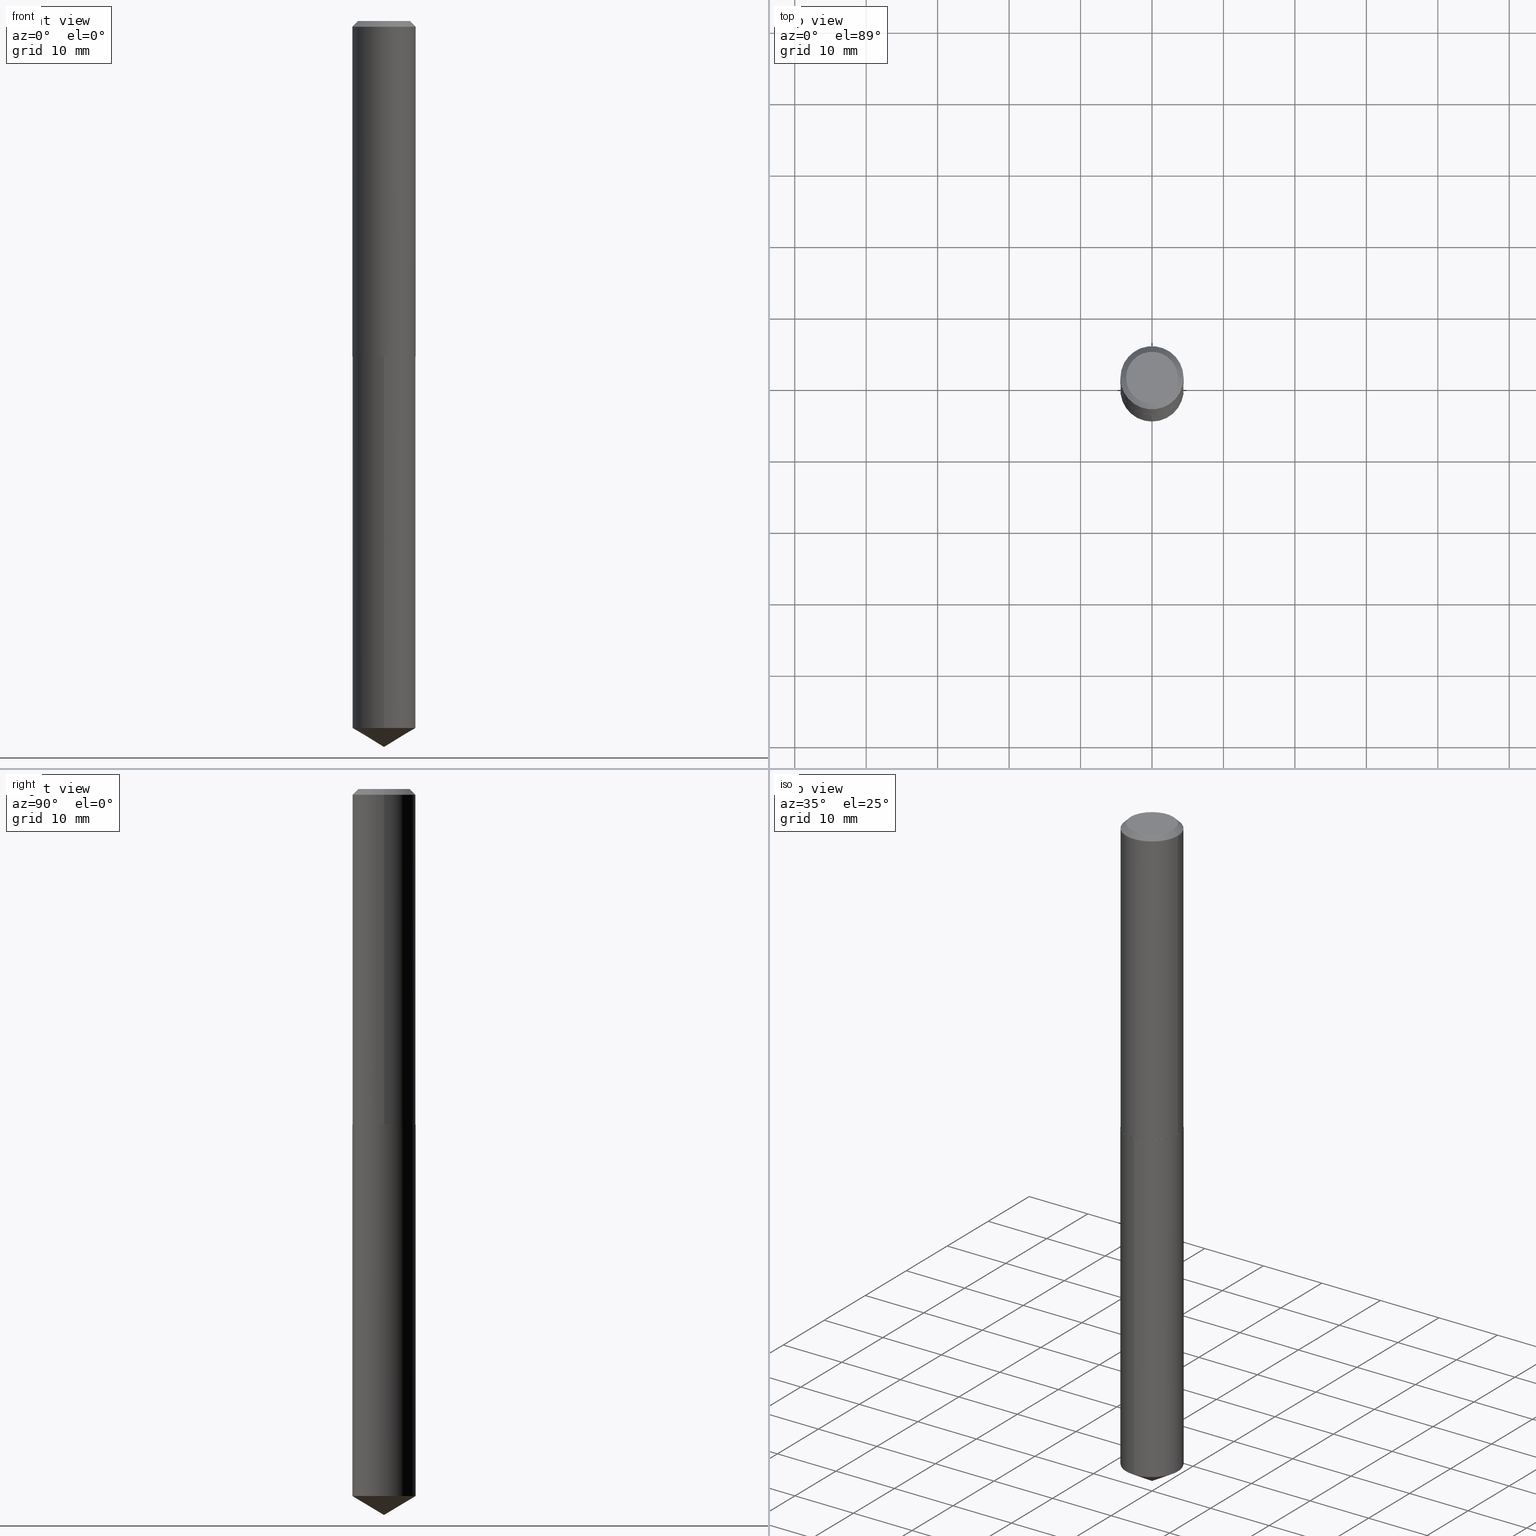
[diagram: canonical four-view strip — front | top / right | iso, engineering-drawing reading convention]
A machine part, canonical four-view strip (front | top / right | iso — engineering-drawing reading convention). The complete STEP part file that produces these views, byte-faithful:
ISO-10303-21;
HEADER;
FILE_DESCRIPTION (( 'STEP AP203' ),
    '1' );
FILE_NAME ('57196.STEP',
    '2024-04-22T23:48:17',
    ( '' ),
    ( '' ),
    'SwSTEP 2.0',
    'SolidWorks 2023',
    '' );
FILE_SCHEMA (( 'CONFIG_CONTROL_DESIGN' ));
ENDSEC;

DATA;
#1 = CALENDAR_DATE ( 2024, 22, 4 ) ;
#2 = PERSON_AND_ORGANIZATION_ROLE ( 'creator' ) ;
#3 = APPROVAL_DATE_TIME ( #212, #384 ) ;
#4 = APPROVAL_ROLE ( '' ) ;
#5 = VERTEX_POINT ( 'NONE', #163 ) ;
#6 = CLOSED_SHELL ( 'NONE', ( #122, #293, #249, #390, #70 ) ) ;
#7 = ORIENTED_EDGE ( 'NONE', *, *, #45, .F. ) ;
#8 = AXIS2_PLACEMENT_3D ( 'NONE', #374, #102, #82 ) ;
#9 = DIRECTION ( 'NONE',  ( 2.445468806185136597E-29, -3.491481338843145583E-15, -1.000000000000000000 ) ) ;
#10 = DIRECTION ( 'NONE',  ( -2.445466038438734772E-29, 3.491485302413523410E-15, 1.000000000000000000 ) ) ;
#11 = DIRECTION ( 'NONE',  ( -2.445466038438734772E-29, 3.491485302413523410E-15, 1.000000000000000000 ) ) ;
#12 = EDGE_CURVE ( 'NONE', #312, #285, #227, .T. ) ;
#13 = DIMENSIONAL_EXPONENTS ( 1.000000000000000000, 0.000000000000000000, 0.000000000000000000, 0.000000000000000000, 0.000000000000000000, 0.000000000000000000, 0.000000000000000000 ) ;
#14 = VECTOR ( 'NONE', #49, 39.37007874015748143 ) ;
#15 = LINE ( 'NONE', #86, #84 ) ;
#16 = DIRECTION ( 'NONE',  ( -2.445466038438734772E-29, 3.491485302413523410E-15, 1.000000000000000000 ) ) ;
#17 = DIRECTION ( 'NONE',  ( 0.7071067811865452413, -7.319954787623248157E-15, -0.7071067811865497932 ) ) ;
#18 = CC_DESIGN_SECURITY_CLASSIFICATION ( #346, ( #282 ) ) ;
#19 = EDGE_CURVE ( 'NONE', #312, #328, #236, .T. ) ;
#20 = DIRECTION ( 'NONE',  ( -2.445468806185136597E-29, 3.491481338843145583E-15, 1.000000000000000000 ) ) ;
#21 = ORIENTED_EDGE ( 'NONE', *, *, #324, .F. ) ;
#22 = EDGE_LOOP ( 'NONE', ( #24, #138, #91, #341 ) ) ;
#23 = CARTESIAN_POINT ( 'NONE',  ( 4.519226353830132731E-29, -6.452257514182133570E-15, -1.848000000000000087 ) ) ;
#24 = ORIENTED_EDGE ( 'NONE', *, *, #287, .T. ) ;
#25 = EDGE_LOOP ( 'NONE', ( #87, #276, #117, #243 ) ) ;
#26 = APPROVAL_DATE_TIME ( #61, #175 ) ;
#27 = DIRECTION ( 'NONE',  ( -2.445466038438734772E-29, 3.491485302413523410E-15, 1.000000000000000000 ) ) ;
#28 = ORIENTED_EDGE ( 'NONE', *, *, #268, .T. ) ;
#29 = EDGE_CURVE ( 'NONE', #83, #285, #200, .T. ) ;
#30 = COORDINATED_UNIVERSAL_TIME_OFFSET ( 5, 0, .BEHIND. ) ;
#31 = CALENDAR_DATE ( 2024, 22, 4 ) ;
#32 = AXIS2_PLACEMENT_3D ( 'NONE', #223, #38, #316 ) ;
#33 = APPROVAL_ROLE ( '' ) ;
#34 = MECHANICAL_CONTEXT ( 'NONE', #360, 'mechanical' ) ;
#35 = EDGE_LOOP ( 'NONE', ( #21, #315, #167 ) ) ;
#36 = EDGE_CURVE ( 'NONE', #359, #5, #292, .T. ) ;
#37 = ORIENTED_EDGE ( 'NONE', *, *, #124, .F. ) ;
#38 = DIRECTION ( 'NONE',  ( -2.445466038438734772E-29, 3.491485302413523410E-15, 1.000000000000000000 ) ) ;
#39 = CC_DESIGN_PERSON_AND_ORGANIZATION_ASSIGNMENT ( #114, #174, ( #346 ) ) ;
#40 = CONICAL_SURFACE ( 'NONE', #193, 65.52281426576912793, 1.029744258676659197 ) ;
#41 = LOCAL_TIME ( 19, 48, 17.00000000000000000, #358 ) ;
#42 = CARTESIAN_POINT ( 'NONE',  ( -0.1740000000000002101, -5.214167413290135067E-15, -1.847499999999999920 ) ) ;
#43 = DIRECTION ( 'NONE',  ( -2.438088387897960049E-29, 3.491481338843145188E-15, 1.000000000000000000 ) ) ;
#44 = AXIS2_PLACEMENT_3D ( 'NONE', #313, #43, #261 ) ;
#45 = EDGE_CURVE ( 'NONE', #68, #218, #300, .T. ) ;
#46 = DIRECTION ( 'NONE',  ( -1.000000000000000000, 6.982962677686265922E-15, -4.876176775795935793E-29 ) ) ;
#47 = DIRECTION ( 'NONE',  ( 1.000000000000000000, -6.982962677686267499E-15, 4.876176775795936914E-29 ) ) ;
#48 =( NAMED_UNIT ( * ) PLANE_ANGLE_UNIT ( ) SI_UNIT ( $, .RADIAN. ) );
#49 = DIRECTION ( 'NONE',  ( -0.7071067811865452413, 2.468850131082233000E-15, -0.7071067811865497932 ) ) ;
#50 = AXIS2_PLACEMENT_3D ( 'NONE', #266, #377, #350 ) ;
#51 = DIRECTION ( 'NONE',  ( -2.445466038438734772E-29, 3.491485302413523410E-15, 1.000000000000000000 ) ) ;
#52 = CC_DESIGN_PERSON_AND_ORGANIZATION_ASSIGNMENT ( #309, #208, ( #81 ) ) ;
#53 = DIRECTION ( 'NONE',  ( 6.090539988449797368E-15, 0.8571673007021165525, 0.5150380749100471611 ) ) ;
#54 = PLANE ( 'NONE',  #44 ) ;
#55 = ORIENTED_EDGE ( 'NONE', *, *, #321, .F. ) ;
#56 = FACE_OUTER_BOUND ( 'NONE', #35, .T. ) ;
#57 = ORIENTED_EDGE ( 'NONE', *, *, #85, .F. ) ;
#58 = CONICAL_SURFACE ( 'NONE', #288, 0.1740000000000002101, 0.7853981633972775267 ) ;
#59 = CARTESIAN_POINT ( 'NONE',  ( -1.215035505917364906E-15, -0.1740000000000064273, -1.847999999999999199 ) ) ;
#60 = ORIENTED_EDGE ( 'NONE', *, *, #363, .T. ) ;
#61 = DATE_AND_TIME ( #246, #389 ) ;
#62 = PERSON_AND_ORGANIZATION_ROLE ( 'creator' ) ;
#63 = CARTESIAN_POINT ( 'NONE',  ( 0.000000000000000000, 0.000000000000000000, 0.000000000000000000 ) ) ;
#64 = VECTOR ( 'NONE', #121, 39.37007874015748143 ) ;
#65 = PERSON_AND_ORGANIZATION_ROLE ( 'design_supplier' ) ;
#66 = EDGE_LOOP ( 'NONE', ( #57, #104, #353, #110 ) ) ;
#67 = EDGE_CURVE ( 'NONE', #289, #215, #270, .T. ) ;
#68 = VERTEX_POINT ( 'NONE', #161 ) ;
#69 = FACE_OUTER_BOUND ( 'NONE', #25, .T. ) ;
#70 = ADVANCED_FACE ( 'NONE', ( #231 ), #233, .F. ) ;
#71 = DIRECTION ( 'NONE',  ( 1.000000000000000000, -6.982962677686266711E-15, 0.000000000000000000 ) ) ;
#72 = ORGANIZATION ( 'UNSPECIFIED', 'UNSPECIFIED', '' ) ;
#73 = CARTESIAN_POINT ( 'NONE',  ( 7.642090019328602662E-31, -1.091087918388490267E-16, -0.03125000000000020817 ) ) ;
#74 = CARTESIAN_POINT ( 'NONE',  ( 4.519226353830132731E-29, -6.452257514182133570E-15, -1.848000000000000087 ) ) ;
#75 = CARTESIAN_POINT ( 'NONE',  ( -6.289154646409587262E-48, 8.979246036383646749E-34, 2.571758278209442396E-19 ) ) ;
#76 = CC_DESIGN_APPROVAL ( #384, ( #191 ) ) ;
#77 = DIRECTION ( 'NONE',  ( 1.000000000000000000, -6.982962677686269077E-15, 0.000000000000000000 ) ) ;
#78 = CARTESIAN_POINT ( 'NONE',  ( 1.236344360222669493E-15, 0.1739999999999935210, -1.848000000000000309 ) ) ;
#79 = CLOSED_SHELL ( 'NONE', ( #213, #334, #205, #88, #186, #168, #222, #154 ) ) ;
#80 = EDGE_LOOP ( 'NONE', ( #307, #92, #180 ) ) ;
#81 = PRODUCT ( '57196', '57196', '', ( #34 ) ) ;
#82 = DIRECTION ( 'NONE',  ( -6.982962677686265922E-15, -1.000000000000000000, 3.468864327941557532E-15 ) ) ;
#83 = VERTEX_POINT ( 'NONE', #302 ) ;
#84 = VECTOR ( 'NONE', #229, 39.37007874015748143 ) ;
#85 = EDGE_CURVE ( 'NONE', #68, #289, #234, .T. ) ;
#86 = CARTESIAN_POINT ( 'NONE',  ( 0.1740000000000002101, -7.665547279430124304E-15, -1.847499999999999920 ) ) ;
#87 = ORIENTED_EDGE ( 'NONE', *, *, #349, .T. ) ;
#88 = ADVANCED_FACE ( 'NONE', ( #327 ), #54, .F. ) ;
#89 = COORDINATED_UNIVERSAL_TIME_OFFSET ( 5, 0, .BEHIND. ) ;
#90 = ORIENTED_EDGE ( 'NONE', *, *, #201, .T. ) ;
#91 = ORIENTED_EDGE ( 'NONE', *, *, #36, .F. ) ;
#92 = ORIENTED_EDGE ( 'NONE', *, *, #324, .T. ) ;
#93 = FACE_OUTER_BOUND ( 'NONE', #66, .T. ) ;
#94 = AXIS2_PLACEMENT_3D ( 'NONE', #73, #225, #71 ) ;
#95 = AXIS2_PLACEMENT_3D ( 'NONE', #63, #241, #177 ) ;
#96 = CARTESIAN_POINT ( 'NONE',  ( 4.519226353830132171E-29, -6.452257514182132781E-15, -1.847999999999999865 ) ) ;
#97 = CARTESIAN_POINT ( 'NONE',  ( 0.1735000000000002096, -7.663801538760702012E-15, -1.848000000000000087 ) ) ;
#98 = CC_DESIGN_PERSON_AND_ORGANIZATION_ASSIGNMENT ( #214, #2, ( #282 ) ) ;
#99 = CARTESIAN_POINT ( 'NONE',  ( 4.519226353830132171E-29, -6.452257514182132781E-15, -1.847999999999999865 ) ) ;
#100 = AXIS2_PLACEMENT_3D ( 'NONE', #271, #299, #131 ) ;
#101 = CYLINDRICAL_SURFACE ( 'NONE', #340, 0.1739999999999999880 ) ;
#102 = DIRECTION ( 'NONE',  ( -2.445466038438734772E-29, 3.491485302413523410E-15, 1.000000000000000000 ) ) ;
#103 = VERTEX_POINT ( 'NONE', #97 ) ;
#104 = ORIENTED_EDGE ( 'NONE', *, *, #45, .T. ) ;
#105 = CARTESIAN_POINT ( 'NONE',  ( 1.236344360222669296E-15, 0.1739999999999863600, -3.895450252289206272 ) ) ;
#106 = ORIENTED_EDGE ( 'NONE', *, *, #124, .T. ) ;
#107 = VECTOR ( 'NONE', #379, 39.37007874015748143 ) ;
#108 = PERSON_AND_ORGANIZATION ( #173, #72 ) ;
#109 = CARTESIAN_POINT ( 'NONE',  ( 4.518003619427039369E-29, -6.450511773512711278E-15, -1.847499999999999920 ) ) ;
#110 = ORIENTED_EDGE ( 'NONE', *, *, #67, .F. ) ;
#111 = DATE_AND_TIME ( #1, #187 ) ;
#112 = EDGE_CURVE ( 'NONE', #253, #328, #126, .T. ) ;
#113 = APPROVAL_ROLE ( '' ) ;
#114 = PERSON_AND_ORGANIZATION ( #173, #72 ) ;
#115 = ORIENTED_EDGE ( 'NONE', *, *, #201, .F. ) ;
#116 = AXIS2_PLACEMENT_3D ( 'NONE', #152, #221, #47 ) ;
#117 = ORIENTED_EDGE ( 'NONE', *, *, #112, .F. ) ;
#118 = ORIENTED_EDGE ( 'NONE', *, *, #287, .F. ) ;
#119 = DIRECTION ( 'NONE',  ( 1.000000000000000000, -6.982962677686269077E-15, 0.000000000000000000 ) ) ;
#120 = CARTESIAN_POINT ( 'NONE',  ( -0.1740000000000000990, 1.236344360222575027E-15, -8.558947057043541363E-30 ) ) ;
#121 = DIRECTION ( 'NONE',  ( -2.445468806185136877E-29, 3.491481338843145188E-15, 1.000000000000000000 ) ) ;
#122 = ADVANCED_FACE ( 'NONE', ( #69 ), #251, .T. ) ;
#123 = APPROVAL_PERSON_ORGANIZATION ( #108, #175, #33 ) ;
#124 = EDGE_CURVE ( 'NONE', #5, #215, #258, .T. ) ;
#125 = DIRECTION ( 'NONE',  ( -6.982962677686265922E-15, -1.000000000000000000, 3.468864327941557532E-15 ) ) ;
#126 = CIRCLE ( 'NONE', #257, 0.1739999999999999880 ) ;
#127 = CARTESIAN_POINT ( 'NONE',  ( 7.642090019328602662E-31, -1.091087918388490267E-16, -0.03125000000000020817 ) ) ;
#128 = CARTESIAN_POINT ( 'NONE',  ( 1.236344360222619006E-15, 0.1739999999999935210, -1.848000000000000309 ) ) ;
#129 = CARTESIAN_POINT ( 'NONE',  ( 9.526196411196203998E-29, -1.360089997747275688E-14, -3.895450252289205384 ) ) ;
#130 =( GEOMETRIC_REPRESENTATION_CONTEXT ( 3 ) GLOBAL_UNCERTAINTY_ASSIGNED_CONTEXT ( ( #370 ) ) GLOBAL_UNIT_ASSIGNED_CONTEXT ( ( #164, #48, #202 ) ) REPRESENTATION_CONTEXT ( 'NONE', 'WORKASPACE' ) );
#131 = DIRECTION ( 'NONE',  ( 1.000000000000000000, -6.982962677686267499E-15, 4.876176775795936914E-29 ) ) ;
#132 = EDGE_CURVE ( 'NONE', #328, #253, #320, .T. ) ;
#133 = DIRECTION ( 'NONE',  ( 6.982962677686265922E-15, 1.000000000000000000, -3.491485302413523410E-15 ) ) ;
#134 = EDGE_LOOP ( 'NONE', ( #37, #151, #60, #383 ) ) ;
#135 = AXIS2_PLACEMENT_3D ( 'NONE', #74, #347, #291 ) ;
#136 = CARTESIAN_POINT ( 'NONE',  ( 9.781874473047076023E-29, -1.396592656029797717E-14, -4.000000000000000000 ) ) ;
#137 = ORIENTED_EDGE ( 'NONE', *, *, #12, .T. ) ;
#138 = ORIENTED_EDGE ( 'NONE', *, *, #142, .T. ) ;
#139 = DATE_AND_TIME ( #308, #366 ) ;
#140 = CARTESIAN_POINT ( 'NONE',  ( 9.781864153754940208E-29, -1.396594120965409364E-14, -4.000000000000000000 ) ) ;
#141 = ORIENTED_EDGE ( 'NONE', *, *, #142, .F. ) ;
#142 = EDGE_CURVE ( 'NONE', #206, #5, #155, .T. ) ;
#143 = AXIS2_PLACEMENT_3D ( 'NONE', #75, #352, #303 ) ;
#144 = CIRCLE ( 'NONE', #256, 0.1735000000000002096 ) ;
#145 = SECURITY_CLASSIFICATION_LEVEL ( 'unclassified' ) ;
#146 = EDGE_CURVE ( 'NONE', #215, #218, #351, .T. ) ;
#147 = PERSON_AND_ORGANIZATION ( #173, #72 ) ;
#148 = APPROVAL_STATUS ( 'not_yet_approved' ) ;
#149 = ORIENTED_EDGE ( 'NONE', *, *, #85, .T. ) ;
#150 = VECTOR ( 'NONE', #17, 39.37007874015748143 ) ;
#151 = ORIENTED_EDGE ( 'NONE', *, *, #209, .T. ) ;
#152 = CARTESIAN_POINT ( 'NONE',  ( 0.000000000000000000, 0.000000000000000000, 0.000000000000000000 ) ) ;
#153 = DIRECTION ( 'NONE',  ( -6.982962677686265133E-15, -1.000000000000000000, 3.140055165131337128E-15 ) ) ;
#154 = ADVANCED_FACE ( 'NONE', ( #345 ), #184, .F. ) ;
#155 = LINE ( 'NONE', #42, #273 ) ;
#156 = CIRCLE ( 'NONE', #135, 0.1735000000000002096 ) ;
#157 = APPROVAL ( #179, 'UNSPECIFIED' ) ;
#158 = FACE_OUTER_BOUND ( 'NONE', #248, .T. ) ;
#159 = CARTESIAN_POINT ( 'NONE',  ( -0.1735000000000002096, -5.216816640464247057E-15, -1.848000000000000087 ) ) ;
#160 = FACE_OUTER_BOUND ( 'NONE', #354, .T. ) ;
#161 = CARTESIAN_POINT ( 'NONE',  ( 0.1427499999999999603, -1.141085766316490663E-15, 2.571758278284192552E-19 ) ) ;
#162 = FACE_OUTER_BOUND ( 'NONE', #80, .T. ) ;
#163 = CARTESIAN_POINT ( 'NONE',  ( -0.1740000000000002101, -5.214167413290135067E-15, -1.847499999999999920 ) ) ;
#164 =( CONVERSION_BASED_UNIT ( 'INCH', #199 ) LENGTH_UNIT ( ) NAMED_UNIT ( #13 ) );
#165 = VECTOR ( 'NONE', #53, 39.37007874015748143 ) ;
#166 = DIRECTION ( 'NONE',  ( -6.982962677686265133E-15, -1.000000000000000000, 3.140055165131337128E-15 ) ) ;
#167 = ORIENTED_EDGE ( 'NONE', *, *, #12, .F. ) ;
#168 = ADVANCED_FACE ( 'NONE', ( #185 ), #371, .T. ) ;
#169 = CARTESIAN_POINT ( 'NONE',  ( -1.215035505917364906E-15, -0.1740000000000064273, -1.847999999999999199 ) ) ;
#170 = EDGE_LOOP ( 'NONE', ( #28, #149 ) ) ;
#171 = CARTESIAN_POINT ( 'NONE',  ( 0.1740000000000000990, -1.215035505917411252E-15, 8.484547589884934838E-30 ) ) ;
#172 = ORIENTED_EDGE ( 'NONE', *, *, #132, .T. ) ;
#173 = PERSON ( 'UNSPECIFIED', 'UNSPECIFIED', 'UNSPECIFIED', ('UNSPECIFIED'), ('UNSPECIFIED'), ('UNSPECIFIED') ) ;
#174 = PERSON_AND_ORGANIZATION_ROLE ( 'classification_officer' ) ;
#175 = APPROVAL ( #281, 'UNSPECIFIED' ) ;
#176 = AXIS2_PLACEMENT_3D ( 'NONE', #294, #260, #46 ) ;
#177 = DIRECTION ( 'NONE',  ( 1.000000000000000000, 0.000000000000000000, 0.000000000000000000 ) ) ;
#178 = ADVANCED_BREP_SHAPE_REPRESENTATION ( '57196', ( #264, #385, #95 ), #130 ) ;
#179 = APPROVAL_STATUS ( 'not_yet_approved' ) ;
#180 = ORIENTED_EDGE ( 'NONE', *, *, #349, .F. ) ;
#181 = ORIENTED_EDGE ( 'NONE', *, *, #209, .F. ) ;
#182 = EDGE_LOOP ( 'NONE', ( #240, #172 ) ) ;
#183 = VECTOR ( 'NONE', #277, 39.37007874015748854 ) ;
#184 = PLANE ( 'NONE',  #176 ) ;
#185 = FACE_OUTER_BOUND ( 'NONE', #134, .T. ) ;
#186 = ADVANCED_FACE ( 'NONE', ( #158 ), #335, .T. ) ;
#187 = LOCAL_TIME ( 19, 48, 17.00000000000000000, #30 ) ;
#188 = DIRECTION ( 'NONE',  ( 1.000000000000000000, -6.982962677686269077E-15, 0.000000000000000000 ) ) ;
#189 = AXIS2_PLACEMENT_3D ( 'NONE', #344, #297, #188 ) ;
#190 = APPLICATION_CONTEXT ( 'configuration controlled 3d designs of mechanical parts and assemblies' ) ;
#191 = PRODUCT_DEFINITION ( 'UNKNOWN', '', #282, #283 ) ;
#192 = CARTESIAN_POINT ( 'NONE',  ( 4.519226353830132171E-29, -6.452257514182132781E-15, -1.847999999999999865 ) ) ;
#193 = AXIS2_PLACEMENT_3D ( 'NONE', #265, #51, #125 ) ;
#194 = CIRCLE ( 'NONE', #224, 0.1739999999999999880 ) ;
#195 = LINE ( 'NONE', #136, #165 ) ;
#196 = CARTESIAN_POINT ( 'NONE',  ( 0.1739999999999999880, -1.302835443451095394E-15, -0.03125000000000020817 ) ) ;
#197 = PRODUCT_DEFINITION_SHAPE ( 'NONE', 'NONE',  #191 ) ;
#198 = FACE_OUTER_BOUND ( 'NONE', #330, .T. ) ;
#199 = LENGTH_MEASURE_WITH_UNIT ( LENGTH_MEASURE( 0.02539999999999999897 ), #232 );
#200 = LINE ( 'NONE', #140, #183 ) ;
#201 = EDGE_CURVE ( 'NONE', #206, #103, #156, .T. ) ;
#202 =( NAMED_UNIT ( * ) SI_UNIT ( $, .STERADIAN. ) SOLID_ANGLE_UNIT ( ) );
#203 = APPROVAL_PERSON_ORGANIZATION ( #244, #157, #4 ) ;
#204 = DIRECTION ( 'NONE',  ( -6.982962677686265133E-15, -1.000000000000000000, 3.140055165131337128E-15 ) ) ;
#205 = ADVANCED_FACE ( 'NONE', ( #367 ), #58, .T. ) ;
#206 = VERTEX_POINT ( 'NONE', #159 ) ;
#207 = AXIS2_PLACEMENT_3D ( 'NONE', #372, #348, #119 ) ;
#208 = PERSON_AND_ORGANIZATION_ROLE ( 'design_owner' ) ;
#209 = EDGE_CURVE ( 'NONE', #5, #359, #373, .T. ) ;
#210 = APPLICATION_PROTOCOL_DEFINITION ( 'international standard', 'config_control_design', 1994, #360 ) ;
#211 = CC_DESIGN_APPROVAL ( #157, ( #346 ) ) ;
#212 = DATE_AND_TIME ( #216, #230 ) ;
#213 = ADVANCED_FACE ( 'NONE', ( #93 ), #263, .T. ) ;
#214 = PERSON_AND_ORGANIZATION ( #173, #72 ) ;
#215 = VERTEX_POINT ( 'NONE', #342 ) ;
#216 = CALENDAR_DATE ( 2024, 22, 4 ) ;
#217 = ORIENTED_EDGE ( 'NONE', *, *, #146, .T. ) ;
#218 = VERTEX_POINT ( 'NONE', #255 ) ;
#219 = CARTESIAN_POINT ( 'NONE',  ( 7.642090019328602662E-31, -1.091087918388490267E-16, -0.03125000000000020817 ) ) ;
#220 = VECTOR ( 'NONE', #387, 39.37007874015748143 ) ;
#221 = DIRECTION ( 'NONE',  ( -2.445468806185136597E-29, 3.491481338843145583E-15, 1.000000000000000000 ) ) ;
#222 = ADVANCED_FACE ( 'NONE', ( #368 ), #375, .T. ) ;
#223 = CARTESIAN_POINT ( 'NONE',  ( 4.519226353830132171E-29, -6.452257514182132781E-15, -1.847999999999999865 ) ) ;
#224 = AXIS2_PLACEMENT_3D ( 'NONE', #127, #20, #326 ) ;
#225 = DIRECTION ( 'NONE',  ( -2.445468806185136597E-29, 3.491481338843145583E-15, 1.000000000000000000 ) ) ;
#226 = DIRECTION ( 'NONE',  ( -6.982962677686265133E-15, -1.000000000000000000, 3.140055165131337128E-15 ) ) ;
#227 = CIRCLE ( 'NONE', #280, 0.1739999999999999880 ) ;
#228 = AXIS2_PLACEMENT_3D ( 'NONE', #219, #9, #319 ) ;
#229 = DIRECTION ( 'NONE',  ( 0.7071067811864267805, -2.468850131080992517E-15, 0.7071067811866682540 ) ) ;
#230 = LOCAL_TIME ( 19, 48, 17.00000000000000000, #89 ) ;
#231 = FACE_OUTER_BOUND ( 'NONE', #182, .T. ) ;
#232 =( LENGTH_UNIT ( ) NAMED_UNIT ( * ) SI_UNIT ( $, .METRE. ) );
#233 = PLANE ( 'NONE',  #314 ) ;
#234 = CIRCLE ( 'NONE', #50, 0.1427499999999999603 ) ;
#235 = LINE ( 'NONE', #171, #107 ) ;
#236 = LINE ( 'NONE', #128, #220 ) ;
#237 = AXIS2_PLACEMENT_3D ( 'NONE', #329, #386, #239 ) ;
#238 = ORIENTED_EDGE ( 'NONE', *, *, #363, .F. ) ;
#239 = DIRECTION ( 'NONE',  ( -1.000000000000000000, 6.982962677686266711E-15, 0.000000000000000000 ) ) ;
#240 = ORIENTED_EDGE ( 'NONE', *, *, #112, .T. ) ;
#241 = DIRECTION ( 'NONE',  ( 0.000000000000000000, 0.000000000000000000, 1.000000000000000000 ) ) ;
#242 = DIRECTION ( 'NONE',  ( -2.445468806185136597E-29, 3.491481338843145583E-15, 1.000000000000000000 ) ) ;
#243 = ORIENTED_EDGE ( 'NONE', *, *, #339, .F. ) ;
#244 = PERSON_AND_ORGANIZATION ( #173, #72 ) ;
#245 = CIRCLE ( 'NONE', #267, 0.1739999999999999880 ) ;
#246 = CALENDAR_DATE ( 2024, 22, 4 ) ;
#247 = APPROVAL_DATE_TIME ( #139, #157 ) ;
#248 = EDGE_LOOP ( 'NONE', ( #141, #90, #304, #181 ) ) ;
#249 = ADVANCED_FACE ( 'NONE', ( #56 ), #40, .T. ) ;
#250 = ORIENTED_EDGE ( 'NONE', *, *, #339, .T. ) ;
#251 = CYLINDRICAL_SURFACE ( 'NONE', #32, 0.1739999999999999880 ) ;
#252 = CC_DESIGN_APPROVAL ( #175, ( #282 ) ) ;
#253 = VERTEX_POINT ( 'NONE', #169 ) ;
#254 = CC_DESIGN_PERSON_AND_ORGANIZATION_ASSIGNMENT ( #310, #62, ( #191 ) ) ;
#255 = CARTESIAN_POINT ( 'NONE',  ( 0.1739999999999999880, -1.324144297756259366E-15, -0.03125000000000020817 ) ) ;
#256 = AXIS2_PLACEMENT_3D ( 'NONE', #23, #376, #356 ) ;
#257 = AXIS2_PLACEMENT_3D ( 'NONE', #192, #11, #226 ) ;
#258 = LINE ( 'NONE', #120, #64 ) ;
#259 = CIRCLE ( 'NONE', #143, 0.1427499999999999603 ) ;
#260 = DIRECTION ( 'NONE',  ( 2.438088387897960049E-29, -3.491481338843145188E-15, -1.000000000000000000 ) ) ;
#261 = DIRECTION ( 'NONE',  ( 1.000000000000000000, -6.982962677686265922E-15, 4.876176775795935793E-29 ) ) ;
#262 = DIRECTION ( 'NONE',  ( -6.982962677686265133E-15, -1.000000000000000000, 3.140055165131337128E-15 ) ) ;
#263 = CONICAL_SURFACE ( 'NONE', #228, 0.1739999999999999880, 0.7853981633974450594 ) ;
#264 = MANIFOLD_SOLID_BREP ( 'Body-Move/Copy2[1]', #6 ) ;
#265 = CARTESIAN_POINT ( 'NONE',  ( -8.649632122116368079E-28, 1.234941173911469450E-13, 35.37007874015748143 ) ) ;
#266 = CARTESIAN_POINT ( 'NONE',  ( -6.289154646409587262E-48, 8.979246036383646749E-34, 2.571758278209442396E-19 ) ) ;
#267 = AXIS2_PLACEMENT_3D ( 'NONE', #129, #269, #204 ) ;
#268 = EDGE_CURVE ( 'NONE', #289, #68, #259, .T. ) ;
#269 = DIRECTION ( 'NONE',  ( -2.445466038438734772E-29, 3.491485302413523410E-15, 1.000000000000000000 ) ) ;
#270 = LINE ( 'NONE', #323, #14 ) ;
#271 = CARTESIAN_POINT ( 'NONE',  ( 0.000000000000000000, 0.000000000000000000, 0.000000000000000000 ) ) ;
#272 = PRODUCT_RELATED_PRODUCT_CATEGORY ( 'detail', '', ( #81 ) ) ;
#273 = VECTOR ( 'NONE', #369, 39.37007874015748143 ) ;
#274 = CARTESIAN_POINT ( 'NONE',  ( 0.1740000000000002101, -7.665547279430124304E-15, -1.847499999999999920 ) ) ;
#275 = CARTESIAN_POINT ( 'NONE',  ( 9.526196411196203998E-29, -1.360089997747275688E-14, -3.895450252289205384 ) ) ;
#276 = ORIENTED_EDGE ( 'NONE', *, *, #19, .T. ) ;
#277 = DIRECTION ( 'NONE',  ( -5.985567269335959423E-15, -0.8571673007021128887, 0.5150380749100530453 ) ) ;
#278 = ORIENTED_EDGE ( 'NONE', *, *, #19, .F. ) ;
#279 = DATE_TIME_ROLE ( 'classification_date' ) ;
#280 = AXIS2_PLACEMENT_3D ( 'NONE', #275, #27, #166 ) ;
#281 = APPROVAL_STATUS ( 'not_yet_approved' ) ;
#282 = PRODUCT_DEFINITION_FORMATION_WITH_SPECIFIED_SOURCE ( 'ANY', '', #81, .NOT_KNOWN. ) ;
#283 = DESIGN_CONTEXT ( 'detailed design', #190, 'design' ) ;
#284 = APPLICATION_PROTOCOL_DEFINITION ( 'international standard', 'config_control_design', 1994, #190 ) ;
#285 = VERTEX_POINT ( 'NONE', #325 ) ;
#286 = CC_DESIGN_DATE_AND_TIME_ASSIGNMENT ( #111, #279, ( #346 ) ) ;
#287 = EDGE_CURVE ( 'NONE', #103, #206, #144, .T. ) ;
#288 = AXIS2_PLACEMENT_3D ( 'NONE', #322, #317, #290 ) ;
#289 = VERTEX_POINT ( 'NONE', #301 ) ;
#290 = DIRECTION ( 'NONE',  ( 1.000000000000000000, -6.982962677686269077E-15, 0.000000000000000000 ) ) ;
#291 = DIRECTION ( 'NONE',  ( 1.000000000000000000, -6.982962677686265922E-15, 0.000000000000000000 ) ) ;
#292 = CIRCLE ( 'NONE', #305, 0.1740000000000002101 ) ;
#293 = ADVANCED_FACE ( 'NONE', ( #162 ), #296, .T. ) ;
#294 = CARTESIAN_POINT ( 'NONE',  ( -3.144577323204793631E-48, 4.489623018191823374E-34, 1.285879139104721198E-19 ) ) ;
#295 = CC_DESIGN_PERSON_AND_ORGANIZATION_ASSIGNMENT ( #364, #65, ( #282 ) ) ;
#296 = CONICAL_SURFACE ( 'NONE', #8, 65.52281426576912793, 1.029744258676659197 ) ;
#297 = DIRECTION ( 'NONE',  ( -2.445468806185136597E-29, 3.491481338843145583E-15, 1.000000000000000000 ) ) ;
#298 = DIRECTION ( 'NONE',  ( 2.445466038438734491E-29, -3.491485302413523410E-15, -1.000000000000000000 ) ) ;
#299 = DIRECTION ( 'NONE',  ( -2.445468806185136597E-29, 3.491481338843145583E-15, 1.000000000000000000 ) ) ;
#300 = LINE ( 'NONE', #196, #150 ) ;
#301 = CARTESIAN_POINT ( 'NONE',  ( -0.1427499999999999603, 1.051372318159137798E-15, 2.571758278137824765E-19 ) ) ;
#302 = CARTESIAN_POINT ( 'NONE',  ( 9.781864153754937966E-29, -1.396594120965409364E-14, -4.000000000000000000 ) ) ;
#303 = DIRECTION ( 'NONE',  ( 1.000000000000000000, -6.982962677686265922E-15, 4.876170438487578859E-29 ) ) ;
#304 = ORIENTED_EDGE ( 'NONE', *, *, #318, .T. ) ;
#305 = AXIS2_PLACEMENT_3D ( 'NONE', #109, #242, #77 ) ;
#306 = DIRECTION ( 'NONE',  ( -2.445466038438734772E-29, 3.491485302413523410E-15, 1.000000000000000000 ) ) ;
#307 = ORIENTED_EDGE ( 'NONE', *, *, #29, .F. ) ;
#308 = CALENDAR_DATE ( 2024, 22, 4 ) ;
#309 = PERSON_AND_ORGANIZATION ( #173, #72 ) ;
#310 = PERSON_AND_ORGANIZATION ( #173, #72 ) ;
#311 = COORDINATED_UNIVERSAL_TIME_OFFSET ( 5, 0, .BEHIND. ) ;
#312 = VERTEX_POINT ( 'NONE', #105 ) ;
#313 = CARTESIAN_POINT ( 'NONE',  ( 2.487343155591107533E-29, -9.362029901670060756E-15, -1.848000000000000087 ) ) ;
#314 = AXIS2_PLACEMENT_3D ( 'NONE', #380, #298, #133 ) ;
#315 = ORIENTED_EDGE ( 'NONE', *, *, #29, .T. ) ;
#316 = DIRECTION ( 'NONE',  ( -6.982962677686265133E-15, -1.000000000000000000, 3.140055165131337128E-15 ) ) ;
#317 = DIRECTION ( 'NONE',  ( -2.445468806185136597E-29, 3.491481338843145583E-15, 1.000000000000000000 ) ) ;
#318 = EDGE_CURVE ( 'NONE', #103, #359, #15, .T. ) ;
#319 = DIRECTION ( 'NONE',  ( -1.000000000000000000, 6.982962677686266711E-15, 0.000000000000000000 ) ) ;
#320 = CIRCLE ( 'NONE', #343, 0.1739999999999999880 ) ;
#321 = EDGE_CURVE ( 'NONE', #218, #215, #194, .T. ) ;
#322 = CARTESIAN_POINT ( 'NONE',  ( 4.518003619427039369E-29, -6.450511773512711278E-15, -1.847499999999999920 ) ) ;
#323 = CARTESIAN_POINT ( 'NONE',  ( -0.1739999999999999880, 1.105926714078561165E-15, -0.03125000000000020817 ) ) ;
#324 = EDGE_CURVE ( 'NONE', #83, #312, #195, .T. ) ;
#325 = CARTESIAN_POINT ( 'NONE',  ( -1.215035505917314419E-15, -0.1740000000000135605, -3.895450252289204940 ) ) ;
#326 = DIRECTION ( 'NONE',  ( 1.000000000000000000, -6.982962677686266711E-15, 0.000000000000000000 ) ) ;
#327 = FACE_OUTER_BOUND ( 'NONE', #388, .T. ) ;
#328 = VERTEX_POINT ( 'NONE', #78 ) ;
#329 = CARTESIAN_POINT ( 'NONE',  ( 7.642090019328602662E-31, -1.091087918388490267E-16, -0.03125000000000020817 ) ) ;
#330 = EDGE_LOOP ( 'NONE', ( #278, #137, #250, #357 ) ) ;
#331 = CYLINDRICAL_SURFACE ( 'NONE', #100, 0.1740000000000000990 ) ;
#332 = DATE_TIME_ROLE ( 'creation_date' ) ;
#333 = VECTOR ( 'NONE', #16, 39.37007874015748143 ) ;
#334 = ADVANCED_FACE ( 'NONE', ( #160 ), #331, .T. ) ;
#335 = CONICAL_SURFACE ( 'NONE', #207, 0.1740000000000002101, 0.7853981633972775267 ) ;
#336 = DATE_AND_TIME ( #31, #41 ) ;
#337 = ORIENTED_EDGE ( 'NONE', *, *, #67, .T. ) ;
#338 = EDGE_LOOP ( 'NONE', ( #7, #382, #337, #217 ) ) ;
#339 = EDGE_CURVE ( 'NONE', #285, #253, #381, .T. ) ;
#340 = AXIS2_PLACEMENT_3D ( 'NONE', #99, #306, #262 ) ;
#341 = ORIENTED_EDGE ( 'NONE', *, *, #318, .F. ) ;
#342 = CARTESIAN_POINT ( 'NONE',  ( -0.1739999999999999880, -2.043465922453203979E-15, -0.03125000000000020817 ) ) ;
#343 = AXIS2_PLACEMENT_3D ( 'NONE', #96, #10, #153 ) ;
#344 = CARTESIAN_POINT ( 'NONE',  ( 4.518003619427039369E-29, -6.450511773512711278E-15, -1.847499999999999920 ) ) ;
#345 = FACE_OUTER_BOUND ( 'NONE', #170, .T. ) ;
#346 = SECURITY_CLASSIFICATION ( '', '', #145 ) ;
#347 = DIRECTION ( 'NONE',  ( -2.445468806185136597E-29, 3.491481338843145583E-15, 1.000000000000000000 ) ) ;
#348 = DIRECTION ( 'NONE',  ( -2.445468806185136597E-29, 3.491481338843145583E-15, 1.000000000000000000 ) ) ;
#349 = EDGE_CURVE ( 'NONE', #285, #312, #245, .T. ) ;
#350 = DIRECTION ( 'NONE',  ( 1.000000000000000000, -6.982962677686265922E-15, 4.876170438487578859E-29 ) ) ;
#351 = CIRCLE ( 'NONE', #94, 0.1739999999999999880 ) ;
#352 = DIRECTION ( 'NONE',  ( -2.445468806185136597E-29, 3.491481338843145583E-15, 1.000000000000000000 ) ) ;
#353 = ORIENTED_EDGE ( 'NONE', *, *, #321, .T. ) ;
#354 = EDGE_LOOP ( 'NONE', ( #365, #106, #55, #238 ) ) ;
#355 = CC_DESIGN_DATE_AND_TIME_ASSIGNMENT ( #336, #332, ( #191 ) ) ;
#356 = DIRECTION ( 'NONE',  ( 1.000000000000000000, -6.982962677686265922E-15, 0.000000000000000000 ) ) ;
#357 = ORIENTED_EDGE ( 'NONE', *, *, #132, .F. ) ;
#358 = COORDINATED_UNIVERSAL_TIME_OFFSET ( 5, 0, .BEHIND. ) ;
#359 = VERTEX_POINT ( 'NONE', #274 ) ;
#360 = APPLICATION_CONTEXT ( 'configuration controlled 3d designs of mechanical parts and assemblies' ) ;
#361 = SHAPE_DEFINITION_REPRESENTATION ( #197, #178 ) ;
#362 = COORDINATED_UNIVERSAL_TIME_OFFSET ( 5, 0, .BEHIND. ) ;
#363 = EDGE_CURVE ( 'NONE', #359, #218, #235, .T. ) ;
#364 = PERSON_AND_ORGANIZATION ( #173, #72 ) ;
#365 = ORIENTED_EDGE ( 'NONE', *, *, #36, .T. ) ;
#366 = LOCAL_TIME ( 19, 48, 17.00000000000000000, #311 ) ;
#367 = FACE_OUTER_BOUND ( 'NONE', #22, .T. ) ;
#368 = FACE_OUTER_BOUND ( 'NONE', #338, .T. ) ;
#369 = DIRECTION ( 'NONE',  ( -0.7071067811864267805, 7.493145998869918709E-15, 0.7071067811866682540 ) ) ;
#370 = UNCERTAINTY_MEASURE_WITH_UNIT (LENGTH_MEASURE( 1.000000000000000082E-05 ), #164, 'distance_accuracy_value', 'NONE');
#371 = CYLINDRICAL_SURFACE ( 'NONE', #116, 0.1740000000000000990 ) ;
#372 = CARTESIAN_POINT ( 'NONE',  ( 4.518003619427039369E-29, -6.450511773512711278E-15, -1.847499999999999920 ) ) ;
#373 = CIRCLE ( 'NONE', #189, 0.1740000000000002101 ) ;
#374 = CARTESIAN_POINT ( 'NONE',  ( -8.649632122116368079E-28, 1.234941173911469450E-13, 35.37007874015748143 ) ) ;
#375 = CONICAL_SURFACE ( 'NONE', #237, 0.1739999999999999880, 0.7853981633974450594 ) ;
#376 = DIRECTION ( 'NONE',  ( -2.445468806185136597E-29, 3.491481338843145583E-15, 1.000000000000000000 ) ) ;
#377 = DIRECTION ( 'NONE',  ( -2.445468806185136597E-29, 3.491481338843145583E-15, 1.000000000000000000 ) ) ;
#378 = APPROVAL_PERSON_ORGANIZATION ( #147, #384, #113 ) ;
#379 = DIRECTION ( 'NONE',  ( -2.445468806185136877E-29, 3.491481338843145188E-15, 1.000000000000000000 ) ) ;
#380 = CARTESIAN_POINT ( 'NONE',  ( 4.519226353830132171E-29, -6.452257514182132781E-15, -1.847999999999999865 ) ) ;
#381 = LINE ( 'NONE', #59, #333 ) ;
#382 = ORIENTED_EDGE ( 'NONE', *, *, #268, .F. ) ;
#383 = ORIENTED_EDGE ( 'NONE', *, *, #146, .F. ) ;
#384 = APPROVAL ( #148, 'UNSPECIFIED' ) ;
#385 = MANIFOLD_SOLID_BREP ( 'Body-Move/Copy2[2]', #79 ) ;
#386 = DIRECTION ( 'NONE',  ( 2.445468806185136597E-29, -3.491481338843145583E-15, -1.000000000000000000 ) ) ;
#387 = DIRECTION ( 'NONE',  ( -2.445466038438734772E-29, 3.491485302413523410E-15, 1.000000000000000000 ) ) ;
#388 = EDGE_LOOP ( 'NONE', ( #118, #115 ) ) ;
#389 = LOCAL_TIME ( 19, 48, 17.00000000000000000, #362 ) ;
#390 = ADVANCED_FACE ( 'NONE', ( #198 ), #101, .T. ) ;
ENDSEC;
END-ISO-10303-21;
